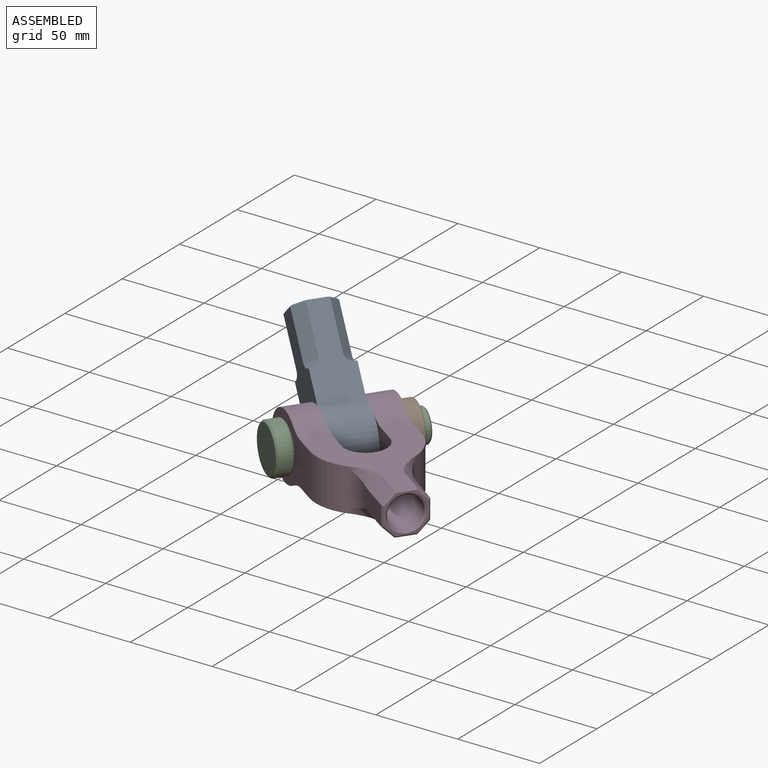
[diagram: assembled view]
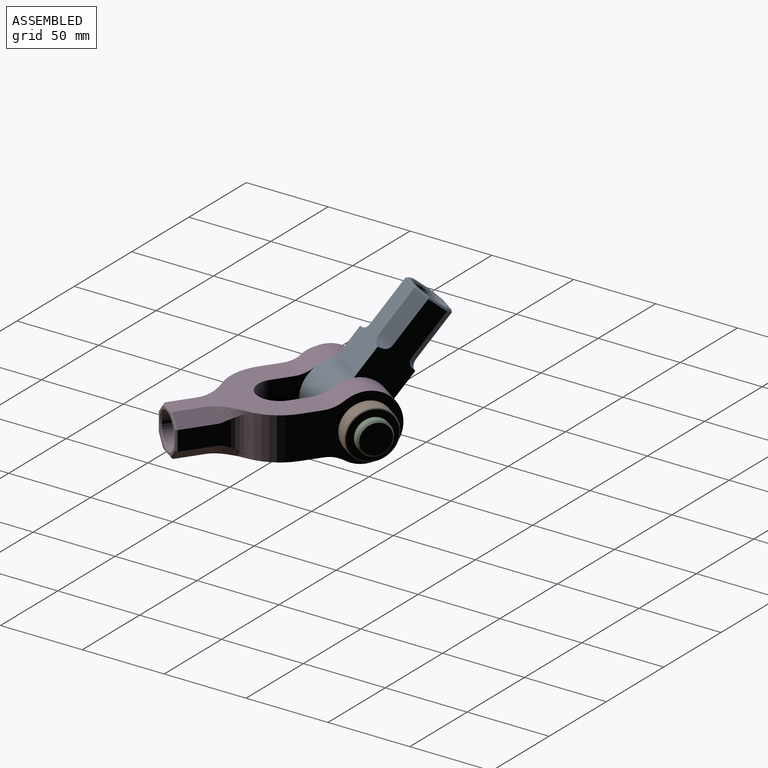
[diagram: assembled view, second angle]
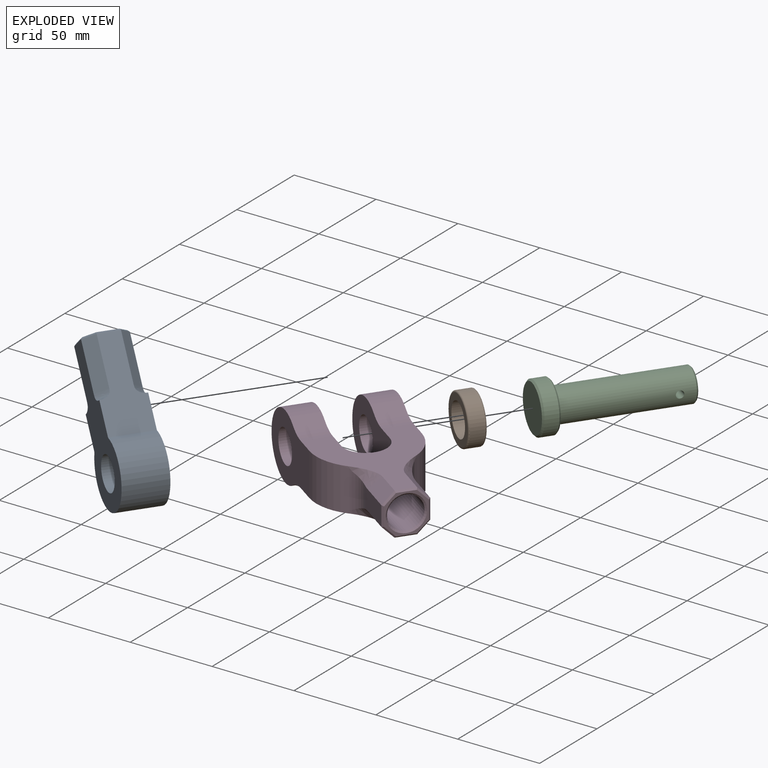
[diagram: exploded view]
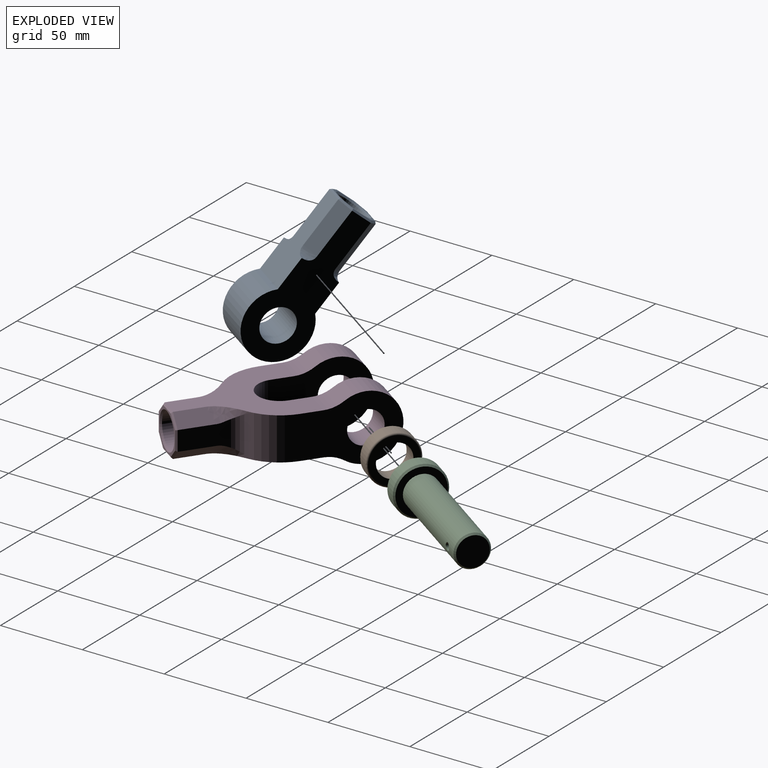
[diagram: exploded view, second angle]
ASSEMBLY  parts=4 mates=4
PART A: 26 faces, bbox 92.1x36x42.1 mm
  f0: plane 55.92x28.12mm, normal (0,0,-1), area 968.3mm2, adj f3,f4,f5,f7,f10,f11,f13,f21
  f1: plane 55.92x28.12mm, normal (0,0,1), area 968.3mm2, adj f3,f4,f5,f8,f9,f12,f14,f20
  f2: plane 24x24mm, normal (-1,0,0), area 125.9mm2, adj f17,f18,f19,f20,f21,f22,f23,f24
  f3: plane 91.12x42.12mm, normal (0,-1,0), area 1826.5mm2, adj f0,f1,f5,f6,f9,f10,f13,f14
  f4: plane 91.12x42.12mm, normal (0,1,0), area 1826.5mm2, adj f0,f1,f5,f6,f7,f8,f11,f12
  f5: cylinder r=20mm len=40mm, axis (0,1,0), area 2531.4mm2, adj f0,f1,f3,f4
  f6: cylinder r=10mm len=26mm, axis (0,1,0), area 1633.6mm2, adj f3,f4
  f7: plane 28.92x6.5mm, normal (0,0.71,-0.71), area 265.8mm2, adj f0,f4,f11,f23
  f8: plane 28.92x6.5mm, normal (0,0.71,0.71), area 265.8mm2, adj f1,f4,f12,f22
  f9: plane 28.92x6.5mm, normal (0,-0.71,0.71), area 265.8mm2, adj f1,f3,f14,f18
  f10: plane 28.92x6.5mm, normal (0,-0.71,-0.71), area 265.8mm2, adj f0,f3,f13,f19
  f11: bspline ~10.74x10.74mm, area 35.6mm2, adj f0,f4,f7
  f12: bspline ~10.74x10.74mm, area 35.6mm2, adj f1,f4,f8
  f13: bspline ~10.74x10.74mm, area 35.6mm2, adj f0,f3,f10
  f14: bspline ~10.74x10.74mm, area 35.6mm2, adj f1,f3,f9
  f15: cylinder r=10mm len=34mm, axis (-1,0,0), area 2136.3mm2, adj f16,f25
  f16: plane 20x20mm, normal (-1,0,0), area 314.2mm2, adj f15
  f17: plane 13x1mm, normal (-0.71,-0.71,0), area 17.8mm2, adj f2,f3,f18,f19
  f18: plane 6.91x6.91mm, normal (-0.71,-0.5,0.5), area 12.4mm2, adj f2,f9,f17,f20
  f19: plane 6.91x6.91mm, normal (-0.71,-0.5,-0.5), area 12.4mm2, adj f2,f10,f17,f21
  f20: plane 13x1mm, normal (-0.71,0,0.71), area 17.8mm2, adj f1,f2,f18,f22
  f21: plane 13x1mm, normal (-0.71,0,-0.71), area 17.8mm2, adj f0,f2,f19,f23
  f22: plane 6.91x6.91mm, normal (-0.71,0.5,0.5), area 12.4mm2, adj f2,f8,f20,f24
  f23: plane 6.91x6.91mm, normal (-0.71,0.5,-0.5), area 12.4mm2, adj f2,f7,f21,f24
  f24: plane 13x1mm, normal (-0.71,0.71,0), area 17.8mm2, adj f2,f4,f22,f23
  f25: cone r=10mm half-angle=45deg, axis (-1,0,0), area 93.3mm2, adj f2,f15
PART B: 6 faces, bbox 10x32.5x32.5 mm
  f0: cylinder r=10mm len=20mm, axis (-1,0,0), area 628.3mm2, adj f2,f3
  f1: cylinder r=15mm len=30mm, axis (-1,0,0), area 754mm2, adj f4,f5
  f2: plane 28x28mm, normal (1,0,0), area 301.6mm2, adj f0,f5
  f3: plane 28x28mm, normal (-1,0,0), area 301.6mm2, adj f0,f4
  f4: torus R=14mm, axis (1,0,0), area 144.5mm2, adj f1,f3
  f5: torus R=14mm, axis (1,0,0), area 144.5mm2, adj f1,f2
PART C: 9 faces, bbox 30x30x85 mm
  f0: cylinder r=15mm len=30mm, axis (0,0,-1), area 754mm2, adj f6,f7
  f1: plane 28x28mm, normal (0,0,1), area 301.6mm2, adj f3,f6
  f2: plane 28x28mm, normal (0,0,-1), area 615.8mm2, adj f7
  f3: cylinder r=10mm len=74mm, axis (0,0,-1), area 4617.6mm2, adj f1,f5,f8
  f4: plane 18x18mm, normal (0,0,1), area 254.5mm2, adj f8
  f5: cylinder r=2.25mm len=20mm, axis (1,0,0), area 279.1mm2, adj f3
  f6: cone r=14mm half-angle=45deg, axis (0,0,-1), area 128.8mm2, adj f0,f1
  f7: cone r=15mm half-angle=45deg, axis (0,0,1), area 128.8mm2, adj f0,f2
  f8: cone r=9mm half-angle=45deg, axis (0,0,-1), area 84.4mm2, adj f3,f4
PART D: 41 faces, bbox 115.1x60.1x47.3 mm
  f0: plane 24x24mm, normal (1,0,0), area 113.6mm2, adj f32,f33,f34,f35,f36,f37,f38,f39
  f1: plane 71.4x60mm, normal (0,0,1), area 1988mm2, adj f5,f6,f9,f10,f11,f12,f14,f17
  f2: plane 71.4x60mm, normal (0,0,-1), area 1988mm2, adj f5,f6,f9,f10,f11,f12,f14,f16
  f3: cylinder r=20mm len=40mm, axis (0,-1,0), area 1477mm2, adj f6,f10,f16,f17
  f4: cylinder r=10mm len=20mm, axis (0,-1,0), area 1068.5mm2, adj f6,f10
  f5: plane 55x40mm, normal (0,1,0), area 1382.4mm2, adj f1,f2,f7,f8,f12,f18,f19
  f6: plane 55x40mm, normal (0,-1,0), area 1382.4mm2, adj f1,f2,f3,f4,f14,f16,f17
  f7: cylinder r=20mm len=40mm, axis (0,-1,0), area 1476.6mm2, adj f5,f11,f18,f19
  f8: cylinder r=10mm len=20mm, axis (0,-1,0), area 1068.2mm2, adj f5,f11
  f9: cylinder r=13mm len=26mm, axis (0,0,1), area 1069mm2, adj f1,f2,f10,f11
  f10: plane 54.64x40mm, normal (0,1,0), area 1373mm2, adj f1,f2,f3,f4,f9,f16,f17
  f11: plane 55.09x40mm, normal (0,-1,0), area 1384.6mm2, adj f1,f2,f7,f8,f9,f18,f19
  f12: cylinder r=30mm len=26mm, axis (0,0,1), area 701.9mm2, adj f1,f2,f5,f24,f25,f26
  f13: plane 23.9x12.95mm, normal (0,1,0), area 286.1mm2, adj f21,f23,f24,f25,f26,f35
  f14: cylinder r=30mm len=26mm, axis (0,0,1), area 701.9mm2, adj f1,f2,f6,f27,f28,f29
  f15: plane 23.9x12.95mm, normal (0,-1,0), area 286.1mm2, adj f20,f22,f27,f28,f29,f38
  f16: cylinder r=20mm len=17.01mm, axis (0,-1,0), area 204.3mm2, adj f2,f3,f6,f10
  f17: cylinder r=20mm len=17.01mm, axis (0,-1,0), area 204.3mm2, adj f1,f3,f6,f10
  f18: cylinder r=20mm len=17mm, axis (0,-1,0), area 204.2mm2, adj f1,f5,f7,f11
  f19: cylinder r=20mm len=17mm, axis (0,-1,0), area 204.2mm2, adj f2,f5,f7,f11
  f20: plane 20.69x7mm, normal (0,-0.71,0.71), area 186.2mm2, adj f1,f15,f27,f36
  f21: plane 20.69x7mm, normal (0,0.71,0.71), area 186.2mm2, adj f1,f13,f24,f33
  f22: plane 20.69x7mm, normal (0,-0.71,-0.71), area 186.2mm2, adj f2,f15,f29,f40
  f23: plane 20.69x7mm, normal (0,0.71,-0.71), area 186.2mm2, adj f2,f13,f26,f37
  f24: bspline ~22x18.34mm, area 114.3mm2, adj f1,f12,f13,f21,f25
  f25: cylinder r=15mm len=24.43mm, axis (0,0,1), area 251.2mm2, adj f12,f13,f24,f26
  f26: bspline ~22x18.34mm, area 114.3mm2, adj f2,f12,f13,f23,f25
  f27: bspline ~22x18.34mm, area 114.3mm2, adj f1,f14,f15,f20,f28
  f28: cylinder r=15mm len=24.43mm, axis (0,0,1), area 251.2mm2, adj f14,f15,f27,f29
  f29: bspline ~22x18.34mm, area 114.3mm2, adj f2,f14,f15,f22,f28
  f30: cylinder r=10mm len=34mm, axis (1,0,0), area 2136.3mm2, adj f31,f32
  f31: plane 20x20mm, normal (1,0,0), area 314.2mm2, adj f30
  f32: cone r=10mm half-angle=45deg, axis (1,0,0), area 93.3mm2, adj f0,f30
  f33: plane 7.41x7.41mm, normal (0.71,0.5,0.5), area 13.4mm2, adj f0,f21,f34,f35
  f34: plane 12x1mm, normal (0.71,0,0.71), area 16.4mm2, adj f0,f1,f33,f36
  f35: plane 12x1mm, normal (0.71,0.71,0), area 16.4mm2, adj f0,f13,f33,f37
  f36: plane 7.41x7.41mm, normal (0.71,-0.5,0.5), area 13.4mm2, adj f0,f20,f34,f38
  f37: plane 7.41x7.41mm, normal (0.71,0.5,-0.5), area 13.4mm2, adj f0,f23,f35,f39
  f38: plane 12x1mm, normal (0.71,-0.71,0), area 16.4mm2, adj f0,f15,f36,f40
  f39: plane 12x1mm, normal (0.71,0,-0.71), area 16.4mm2, adj f0,f2,f37,f40
  f40: plane 7.41x7.41mm, normal (0.71,-0.5,-0.5), area 13.4mm2, adj f0,f22,f38,f39
PLACE A rot(axis=(0.25,0.8,-0.54),60.4deg) t=(-116.63,29.4,26.69)mm
PLACE B rot(axis=(0,0,1),55deg) t=(-106.88,43.32,26.69)mm
PLACE C rot(axis=(-0.91,0.29,-0.29),95.2deg) t=(-147.03,-14.02,26.69)mm
PLACE D rot(axis=(0,0,-1),35deg) t=(-106.88,43.32,13.69)mm
MATE revolute A.f6 <-> D.f4  axis (-0.57,-0.82,0) through (-131.54,8.1,26.69)mm
MATE fastened B.f1 <-> D.f4  axis (-0.57,-0.82,0) through (-106.88,43.32,26.69)mm
MATE fastened D.f4 <-> C.f3  axis (-0.57,-0.82,0) through (-141.3,-5.83,26.69)mm
MATE slider C.f3 <-> D.f4  axis (-0.57,-0.82,0) through (-141.3,-5.83,26.69)mm
